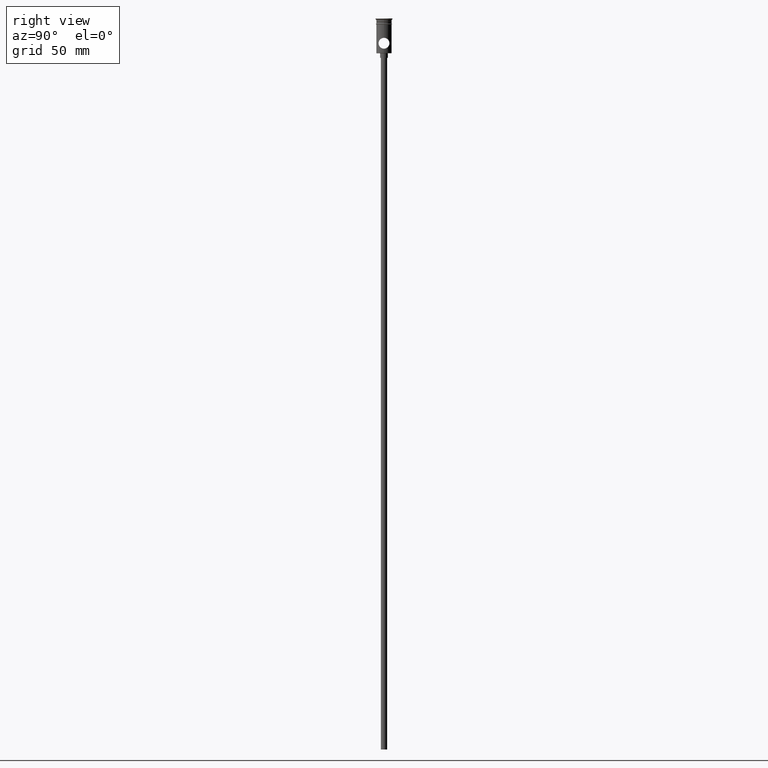
[diagram: clean part render]
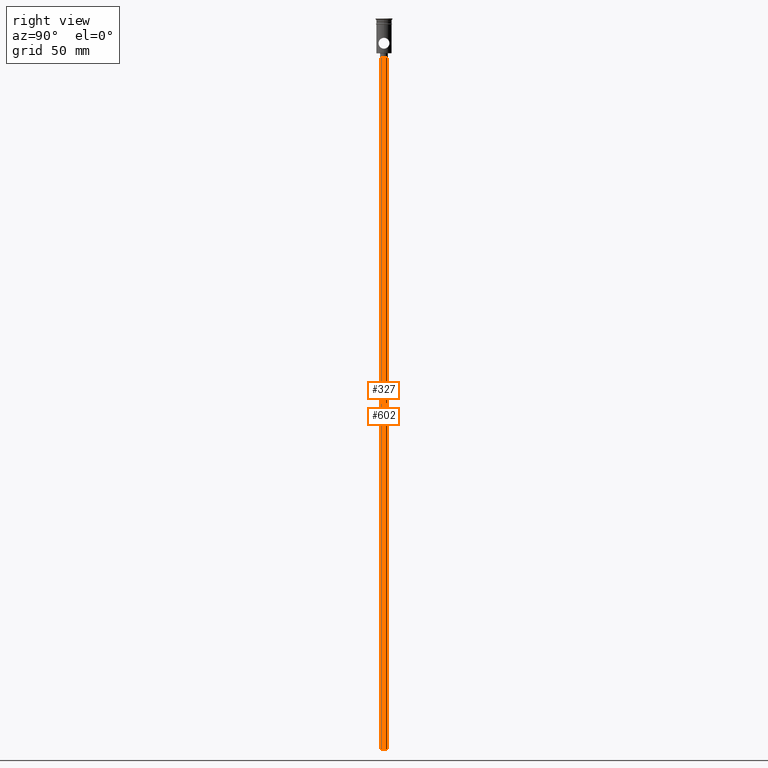
[diagram: same view with one multi-face feature highlighted, each face labeled with its STEP entity id]
A machine part, right view. The highlighted faces form ONE feature: a constant-radius fillet chain: 2 tangent blend faces with common blend radius 2 mm. The faces share edges in the B-rep.
Their STEP definitions:
[1] entity #602 (Cylinder):
#40 = DIRECTION ( 'NONE',  ( -1.000000000000000000, 0.000000000000000000, 0.000000000000000000 ) ) ;
#72 = CARTESIAN_POINT ( 'NONE',  ( -2.000000000000000000, 2.449293598294706414E-16, -472.5000000000000568 ) ) ;
#140 = VERTEX_POINT ( 'NONE', #786 ) ;
#147 = CIRCLE ( 'NONE', #862, 2.000000000000000000 ) ;
#159 = DIRECTION ( 'NONE',  ( 0.000000000000000000, 0.000000000000000000, -1.000000000000000000 ) ) ;
#190 = DIRECTION ( 'NONE',  ( -0.000000000000000000, -0.000000000000000000, 1.000000000000000000 ) ) ;
#203 = ORIENTED_EDGE ( 'NONE', *, *, #622, .F. ) ;
#253 = DIRECTION ( 'NONE',  ( 1.000000000000000000, 0.000000000000000000, 0.000000000000000000 ) ) ;
#291 = DIRECTION ( 'NONE',  ( -1.000000000000000000, 0.000000000000000000, 0.000000000000000000 ) ) ;
#292 = CARTESIAN_POINT ( 'NONE',  ( 2.000000000000000000, 0.000000000000000000, -25.50000000000000000 ) ) ;
#358 = VERTEX_POINT ( 'NONE', #292 ) ;
#360 = DIRECTION ( 'NONE',  ( -0.000000000000000000, -0.000000000000000000, 1.000000000000000000 ) ) ;
#437 = FACE_OUTER_BOUND ( 'NONE', #1252, .T. ) ;
#523 = VERTEX_POINT ( 'NONE', #785 ) ;
#579 = AXIS2_PLACEMENT_3D ( 'NONE', #1260, #159, #40 ) ;
#602 = ADVANCED_FACE ( 'NONE', ( #437 ), #887, .T. ) ;
#622 = EDGE_CURVE ( 'NONE', #1283, #140, #1042, .T. ) ;
#652 = EDGE_CURVE ( 'NONE', #1283, #523, #980, .T. ) ;
#736 = LINE ( 'NONE', #902, #1043 ) ;
#738 = CARTESIAN_POINT ( 'NONE',  ( -2.000000000000000000, 2.449293598294706414E-16, -472.5000000000000568 ) ) ;
#785 = CARTESIAN_POINT ( 'NONE',  ( -2.000000000000000000, 2.449293598294706414E-16, -25.50000000000000000 ) ) ;
#786 = CARTESIAN_POINT ( 'NONE',  ( 2.000000000000000000, 0.000000000000000000, -472.5000000000000568 ) ) ;
#825 = DIRECTION ( 'NONE',  ( 0.000000000000000000, 0.000000000000000000, -1.000000000000000000 ) ) ;
#860 = VECTOR ( 'NONE', #190, 1000.000000000000000 ) ;
#862 = AXIS2_PLACEMENT_3D ( 'NONE', #1402, #825, #291 ) ;
#886 = DIRECTION ( 'NONE',  ( -0.000000000000000000, -0.000000000000000000, 1.000000000000000000 ) ) ;
#887 = CYLINDRICAL_SURFACE ( 'NONE', #1459, 2.000000000000000000 ) ;
#902 = CARTESIAN_POINT ( 'NONE',  ( 2.000000000000000000, 0.000000000000000000, -472.5000000000000568 ) ) ;
#980 = LINE ( 'NONE', #738, #860 ) ;
#1042 = CIRCLE ( 'NONE', #579, 2.000000000000000000 ) ;
#1043 = VECTOR ( 'NONE', #886, 1000.000000000000000 ) ;
#1126 = EDGE_CURVE ( 'NONE', #523, #358, #147, .T. ) ;
#1133 = EDGE_CURVE ( 'NONE', #140, #358, #736, .T. ) ;
#1147 = CARTESIAN_POINT ( 'NONE',  ( 0.000000000000000000, 0.000000000000000000, -472.5000000000000568 ) ) ;
#1182 = ORIENTED_EDGE ( 'NONE', *, *, #652, .T. ) ;
#1188 = ORIENTED_EDGE ( 'NONE', *, *, #1133, .F. ) ;
#1252 = EDGE_LOOP ( 'NONE', ( #203, #1182, #1394, #1188 ) ) ;
#1260 = CARTESIAN_POINT ( 'NONE',  ( 0.000000000000000000, 0.000000000000000000, -472.5000000000000568 ) ) ;
#1283 = VERTEX_POINT ( 'NONE', #72 ) ;
#1394 = ORIENTED_EDGE ( 'NONE', *, *, #1126, .T. ) ;
#1402 = CARTESIAN_POINT ( 'NONE',  ( 0.000000000000000000, 0.000000000000000000, -25.50000000000000000 ) ) ;
#1459 = AXIS2_PLACEMENT_3D ( 'NONE', #1147, #360, #253 ) ;
[2] entity #327 (Cylinder):
#61 = ORIENTED_EDGE ( 'NONE', *, *, #1133, .T. ) ;
#72 = CARTESIAN_POINT ( 'NONE',  ( -2.000000000000000000, 2.449293598294706414E-16, -472.5000000000000568 ) ) ;
#140 = VERTEX_POINT ( 'NONE', #786 ) ;
#190 = DIRECTION ( 'NONE',  ( -0.000000000000000000, -0.000000000000000000, 1.000000000000000000 ) ) ;
#292 = CARTESIAN_POINT ( 'NONE',  ( 2.000000000000000000, 0.000000000000000000, -25.50000000000000000 ) ) ;
#327 = ADVANCED_FACE ( 'NONE', ( #584 ), #1032, .T. ) ;
#331 = AXIS2_PLACEMENT_3D ( 'NONE', #536, #982, #1443 ) ;
#358 = VERTEX_POINT ( 'NONE', #292 ) ;
#378 = ORIENTED_EDGE ( 'NONE', *, *, #486, .T. ) ;
#420 = AXIS2_PLACEMENT_3D ( 'NONE', #702, #1139, #1367 ) ;
#486 = EDGE_CURVE ( 'NONE', #358, #523, #1092, .T. ) ;
#523 = VERTEX_POINT ( 'NONE', #785 ) ;
#531 = EDGE_LOOP ( 'NONE', ( #950, #1167, #61, #378 ) ) ;
#536 = CARTESIAN_POINT ( 'NONE',  ( 0.000000000000000000, 0.000000000000000000, -25.50000000000000000 ) ) ;
#584 = FACE_OUTER_BOUND ( 'NONE', #531, .T. ) ;
#613 = EDGE_CURVE ( 'NONE', #140, #1283, #819, .T. ) ;
#652 = EDGE_CURVE ( 'NONE', #1283, #523, #980, .T. ) ;
#702 = CARTESIAN_POINT ( 'NONE',  ( 0.000000000000000000, 0.000000000000000000, -472.5000000000000568 ) ) ;
#736 = LINE ( 'NONE', #902, #1043 ) ;
#738 = CARTESIAN_POINT ( 'NONE',  ( -2.000000000000000000, 2.449293598294706414E-16, -472.5000000000000568 ) ) ;
#785 = CARTESIAN_POINT ( 'NONE',  ( -2.000000000000000000, 2.449293598294706414E-16, -25.50000000000000000 ) ) ;
#786 = CARTESIAN_POINT ( 'NONE',  ( 2.000000000000000000, 0.000000000000000000, -472.5000000000000568 ) ) ;
#819 = CIRCLE ( 'NONE', #420, 2.000000000000000000 ) ;
#860 = VECTOR ( 'NONE', #190, 1000.000000000000000 ) ;
#886 = DIRECTION ( 'NONE',  ( -0.000000000000000000, -0.000000000000000000, 1.000000000000000000 ) ) ;
#902 = CARTESIAN_POINT ( 'NONE',  ( 2.000000000000000000, 0.000000000000000000, -472.5000000000000568 ) ) ;
#950 = ORIENTED_EDGE ( 'NONE', *, *, #652, .F. ) ;
#980 = LINE ( 'NONE', #738, #860 ) ;
#982 = DIRECTION ( 'NONE',  ( 0.000000000000000000, 0.000000000000000000, -1.000000000000000000 ) ) ;
#1032 = CYLINDRICAL_SURFACE ( 'NONE', #1352, 2.000000000000000000 ) ;
#1043 = VECTOR ( 'NONE', #886, 1000.000000000000000 ) ;
#1050 = CARTESIAN_POINT ( 'NONE',  ( 0.000000000000000000, 0.000000000000000000, -472.5000000000000568 ) ) ;
#1092 = CIRCLE ( 'NONE', #331, 2.000000000000000000 ) ;
#1133 = EDGE_CURVE ( 'NONE', #140, #358, #736, .T. ) ;
#1139 = DIRECTION ( 'NONE',  ( 0.000000000000000000, 0.000000000000000000, -1.000000000000000000 ) ) ;
#1167 = ORIENTED_EDGE ( 'NONE', *, *, #613, .F. ) ;
#1173 = DIRECTION ( 'NONE',  ( -0.000000000000000000, -0.000000000000000000, 1.000000000000000000 ) ) ;
#1283 = VERTEX_POINT ( 'NONE', #72 ) ;
#1352 = AXIS2_PLACEMENT_3D ( 'NONE', #1050, #1173, #1420 ) ;
#1367 = DIRECTION ( 'NONE',  ( -1.000000000000000000, 0.000000000000000000, 0.000000000000000000 ) ) ;
#1420 = DIRECTION ( 'NONE',  ( 1.000000000000000000, 0.000000000000000000, 0.000000000000000000 ) ) ;
#1443 = DIRECTION ( 'NONE',  ( -1.000000000000000000, 0.000000000000000000, 0.000000000000000000 ) ) ;